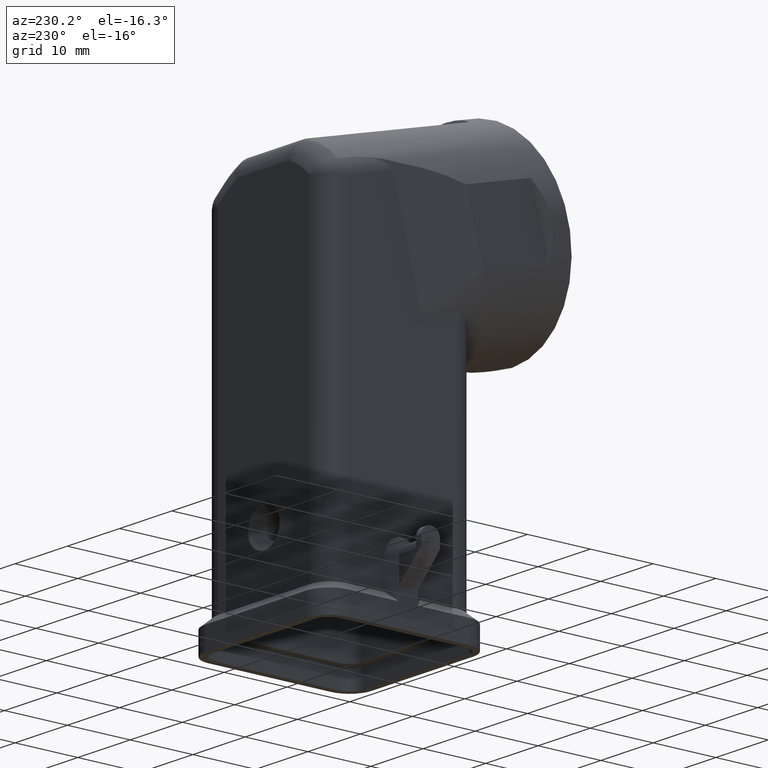
[diagram: clean part render]
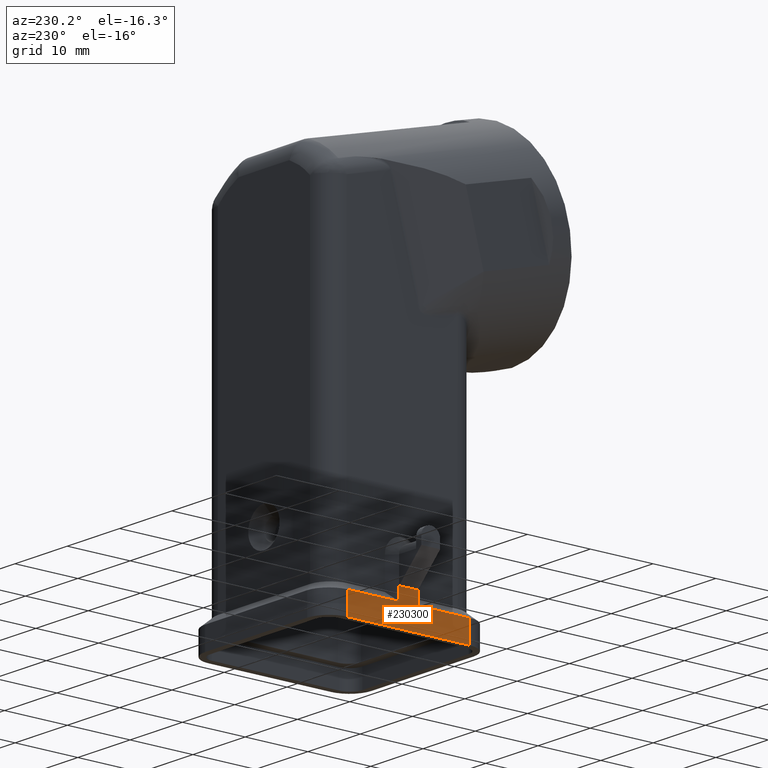
[diagram: same view with one face highlighted and labeled with its STEP entity id]
A machine part, auxiliary view. The second image highlights one B-rep face of the part: STEP entity #230300.
In plain terms, the highlighted planar face has unit normal (-1, 0, 0).
Its self-contained STEP definition (entity closure, byte-faithful):
#6350=CARTESIAN_POINT('',(-13.25,32.7856298515438,2.00000000000001));
#6360=VERTEX_POINT('',#6350);
#6390=CARTESIAN_POINT('',(-13.25,32.7856298515438,-3.5));
#6400=DIRECTION('',(0.,0.,1.));
#6410=VECTOR('',#6400,1.);
#6420=LINE('',#6390,#6410);
#6430=CARTESIAN_POINT('',(-13.25,32.7856298515438,-4.44089209850063E-16)
);
#6440=VERTEX_POINT('',#6430);
#6450=EDGE_CURVE('',#6440,#6360,#6420,.T.);
#21420=CARTESIAN_POINT('',(-13.25,41.0356298515438,-3.99680288865056E-15
));
#21430=VERTEX_POINT('',#21420);
#21480=CARTESIAN_POINT('',(-13.25,62.5712597030875,-1.77635683940025E-15
));
#21490=DIRECTION('',(6.32993511741643E-18,1.,0.));
#21500=VECTOR('',#21490,1.);
#21510=LINE('',#21480,#21500);
#21520=EDGE_CURVE('',#6440,#21430,#21510,.T.);
#38870=CARTESIAN_POINT('',(-13.25,41.0356298515438,-3.5));
#38880=DIRECTION('',(0.,0.,1.));
#38890=VECTOR('',#38880,1.);
#38900=LINE('',#38870,#38890);
#38910=CARTESIAN_POINT('',(-13.25,41.0356298515438,-3.5));
#38920=VERTEX_POINT('',#38910);
#38930=EDGE_CURVE('',#38920,#21430,#38900,.T.);
#45520=CARTESIAN_POINT('',(-13.25,29.7856298515438,2.00000000000001));
#45530=VERTEX_POINT('',#45520);
#45560=CARTESIAN_POINT('',(-13.25,6.10199592720656E-16,2.));
#45570=DIRECTION('',(4.60527994506155E-17,1.,0.));
#45580=VECTOR('',#45570,1.);
#45590=LINE('',#45560,#45580);
#45600=EDGE_CURVE('',#45530,#6360,#45590,.T.);
#50900=CARTESIAN_POINT('',(-13.25,44.5356298515438,-3.5));
#50910=DIRECTION('',(-4.60527994506155E-17,-1.,0.));
#50920=VECTOR('',#50910,1.);
#50930=LINE('',#50900,#50920);
#50940=CARTESIAN_POINT('',(-13.25,21.5356298515438,-3.5));
#50950=VERTEX_POINT('',#50940);
#50960=EDGE_CURVE('',#38920,#50950,#50930,.T.);
#53990=CARTESIAN_POINT('',(-13.25,21.5356298515438,-3.5));
#54000=DIRECTION('',(0.,0.,1.));
#54010=VECTOR('',#54000,1.);
#54020=LINE('',#53990,#54010);
#54030=CARTESIAN_POINT('',(-13.25,21.5356298515438,-3.99680288865056E-15
));
#54040=VERTEX_POINT('',#54030);
#54050=EDGE_CURVE('',#50950,#54040,#54020,.T.);
#61010=CARTESIAN_POINT('',(-13.25,29.7856298515438,-4.44089209850063E-16
));
#61020=VERTEX_POINT('',#61010);
#61050=CARTESIAN_POINT('',(-13.25,29.7856298515438,-3.5));
#61060=DIRECTION('',(0.,0.,1.));
#61070=VECTOR('',#61060,1.);
#61080=LINE('',#61050,#61070);
#61090=EDGE_CURVE('',#61020,#45530,#61080,.T.);
#61600=CARTESIAN_POINT('',(-13.2500000000001,2.8421709430404E-14,
-1.77635683940025E-15));
#61610=DIRECTION('',(-3.14192720293051E-16,-1.,0.));
#61620=VECTOR('',#61610,1.);
#61630=LINE('',#61600,#61620);
#61640=EDGE_CURVE('',#61020,#54040,#61630,.T.);
#230150=CARTESIAN_POINT('',(-13.25,18.0356298515438,-3.5));
#230160=DIRECTION('',(-1.,4.60527994506155E-17,0.));
#230170=DIRECTION('',(4.60527994506155E-17,1.,0.));
#230180=AXIS2_PLACEMENT_3D('',#230150,#230160,#230170);
#230190=PLANE('',#230180);
#230200=ORIENTED_EDGE('',*,*,#61090,.T.);
#230210=ORIENTED_EDGE('',*,*,#61640,.F.);
#230220=ORIENTED_EDGE('',*,*,#54050,.T.);
#230230=ORIENTED_EDGE('',*,*,#50960,.T.);
#230240=ORIENTED_EDGE('',*,*,#38930,.F.);
#230250=ORIENTED_EDGE('',*,*,#21520,.T.);
#230260=ORIENTED_EDGE('',*,*,#6450,.F.);
#230270=ORIENTED_EDGE('',*,*,#45600,.T.);
#230280=EDGE_LOOP('',(#230270,#230260,#230250,#230240,#230230,#230220,
#230210,#230200));
#230290=FACE_OUTER_BOUND('',#230280,.T.);
#230300=ADVANCED_FACE('',(#230290),#230190,.T.);